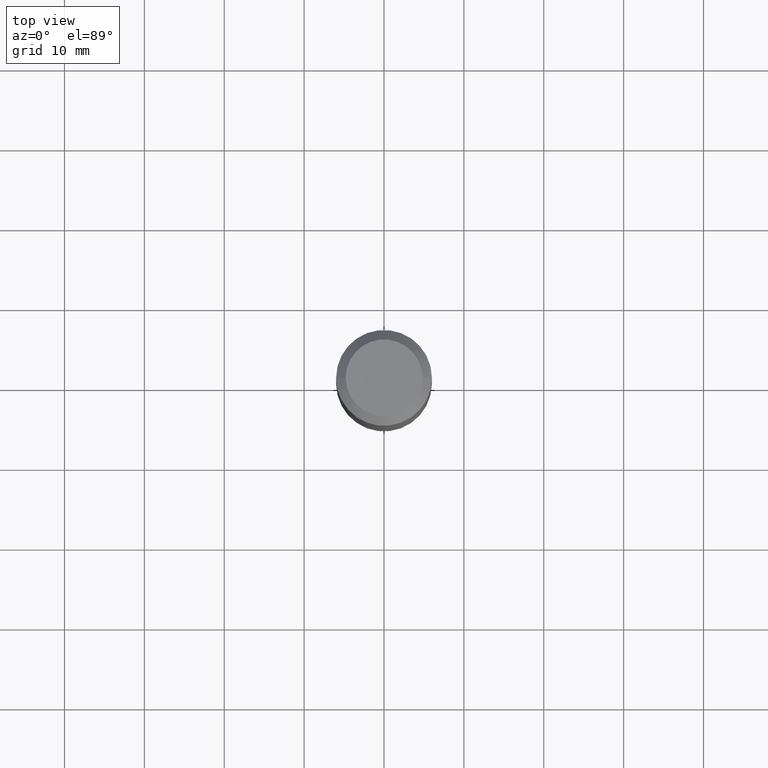
[diagram: clean part render]
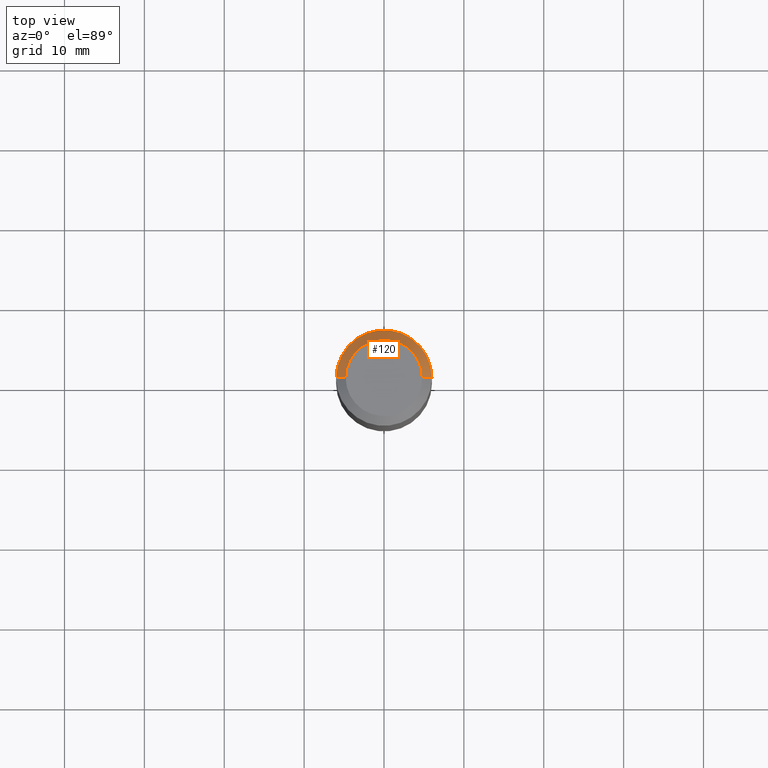
[diagram: same view with one face highlighted and labeled with its STEP entity id]
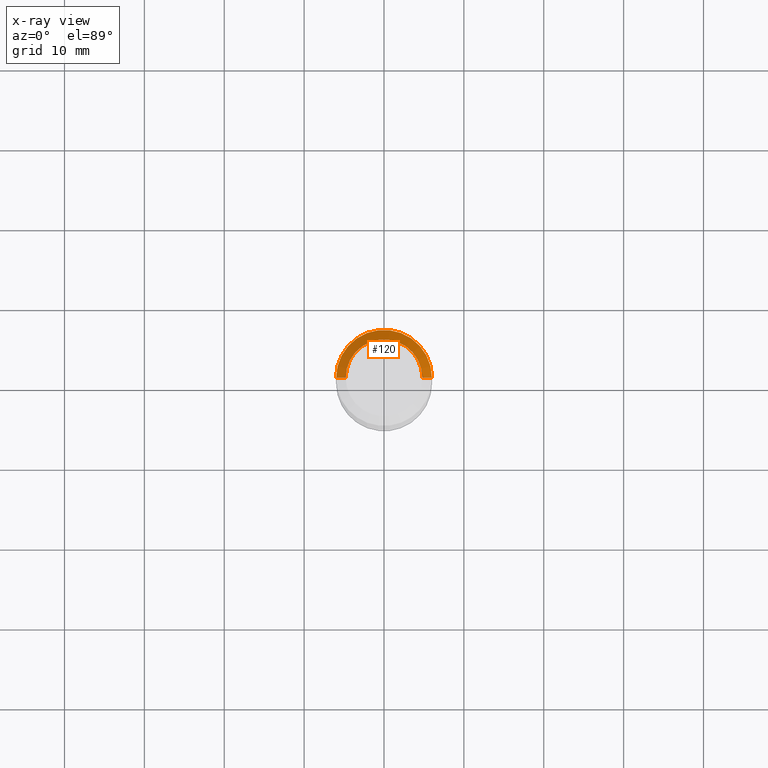
[diagram: x-ray of the same camera — body ghosted, the highlighted face saturated]
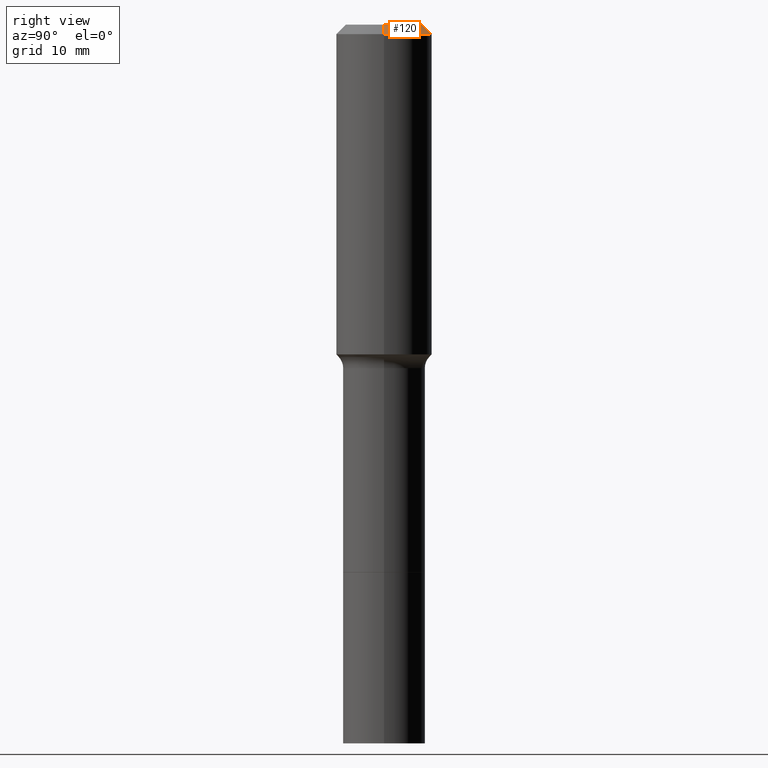
[diagram: same view with one face highlighted and labeled with its STEP entity id]
A machine part, top view. The second image highlights one B-rep face of the part: STEP entity #120.
The next image is the same camera in x-ray: the body ghosted, the highlighted face saturated — about 0% of this face is hidden behind the body in this view.
A second angle (right view) of the same face is appended — the face is thin or edge-on in the first view.
In plain terms, the highlighted conical surface has half-angle 45 deg.
Its self-contained STEP definition (entity closure, byte-faithful):
#28 = CIRCLE ( 'NONE', #326, 0.1889600000000000168 ) ;
#32 = VERTEX_POINT ( 'NONE', #131 ) ;
#43 = VECTOR ( 'NONE', #138, 39.37007874015748143 ) ;
#47 = EDGE_CURVE ( 'NONE', #76, #32, #306, .T. ) ;
#51 = VERTEX_POINT ( 'NONE', #58 ) ;
#58 = CARTESIAN_POINT ( 'NONE',  ( 0.2361999999999999933, -1.814313362916447440E-15, -0.04724000000000027483 ) ) ;
#64 = FACE_OUTER_BOUND ( 'NONE', #281, .T. ) ;
#76 = VERTEX_POINT ( 'NONE', #259 ) ;
#78 = DIRECTION ( 'NONE',  ( -2.445468806185136597E-29, 3.491481338843145583E-15, 1.000000000000000000 ) ) ;
#96 = CARTESIAN_POINT ( 'NONE',  ( -9.427742298522546243E-47, 1.346031739168365344E-32, 3.855188123715862256E-18 ) ) ;
#109 = CONICAL_SURFACE ( 'NONE', #185, 0.2361999999999999933, 0.7853981633974452814 ) ;
#119 = VERTEX_POINT ( 'NONE', #134 ) ;
#120 = ADVANCED_FACE ( 'NONE', ( #64 ), #109, .T. ) ;
#131 = CARTESIAN_POINT ( 'NONE',  ( -0.2361999999999999933, -1.242595281846650388E-15, -0.04724000000000027483 ) ) ;
#134 = CARTESIAN_POINT ( 'NONE',  ( 0.1889600000000000168, -1.540873453589747738E-15, 3.855188123725863225E-18 ) ) ;
#136 = LINE ( 'NONE', #383, #43 ) ;
#138 = DIRECTION ( 'NONE',  ( 0.7071067811865453523, -7.319954787623248157E-15, -0.7071067811865496822 ) ) ;
#166 = ORIENTED_EDGE ( 'NONE', *, *, #505, .T. ) ;
#185 = AXIS2_PLACEMENT_3D ( 'NONE', #308, #463, #262 ) ;
#191 = DIRECTION ( 'NONE',  ( 1.000000000000000000, -6.982962677686266711E-15, 0.000000000000000000 ) ) ;
#224 = DIRECTION ( 'NONE',  ( -2.445468806185136597E-29, 3.491481338843145583E-15, 1.000000000000000000 ) ) ;
#259 = CARTESIAN_POINT ( 'NONE',  ( -0.1889600000000000168, 1.401969416799070942E-15, 3.855188123706346622E-18 ) ) ;
#262 = DIRECTION ( 'NONE',  ( -1.000000000000000000, 6.982962677686266711E-15, 0.000000000000000000 ) ) ;
#272 = EDGE_CURVE ( 'NONE', #119, #76, #28, .T. ) ;
#281 = EDGE_LOOP ( 'NONE', ( #354, #482, #166, #370 ) ) ;
#306 = LINE ( 'NONE', #504, #401 ) ;
#308 = CARTESIAN_POINT ( 'NONE',  ( 1.155239464041865331E-30, -1.649375784469511612E-16, -0.04724000000000027483 ) ) ;
#309 = CIRCLE ( 'NONE', #437, 0.2361999999999999933 ) ;
#323 = EDGE_CURVE ( 'NONE', #119, #51, #136, .T. ) ;
#326 = AXIS2_PLACEMENT_3D ( 'NONE', #96, #224, #349 ) ;
#340 = DIRECTION ( 'NONE',  ( -0.7071067811865453523, 2.468850131082234184E-15, -0.7071067811865496822 ) ) ;
#349 = DIRECTION ( 'NONE',  ( 1.000000000000000000, -6.982962677686266711E-15, 4.876185090822587894E-29 ) ) ;
#354 = ORIENTED_EDGE ( 'NONE', *, *, #272, .F. ) ;
#370 = ORIENTED_EDGE ( 'NONE', *, *, #47, .F. ) ;
#383 = CARTESIAN_POINT ( 'NONE',  ( 0.2361999999999999933, -1.785387205520586782E-15, -0.04724000000000027483 ) ) ;
#401 = VECTOR ( 'NONE', #340, 39.37007874015748143 ) ;
#437 = AXIS2_PLACEMENT_3D ( 'NONE', #516, #78, #191 ) ;
#463 = DIRECTION ( 'NONE',  ( 2.445468806185136597E-29, -3.491481338843145583E-15, -1.000000000000000000 ) ) ;
#482 = ORIENTED_EDGE ( 'NONE', *, *, #323, .T. ) ;
#504 = CARTESIAN_POINT ( 'NONE',  ( -0.2361999999999999933, 1.484438206022545019E-15, -0.04724000000000027483 ) ) ;
#505 = EDGE_CURVE ( 'NONE', #51, #32, #309, .T. ) ;
#516 = CARTESIAN_POINT ( 'NONE',  ( 1.155239464041865331E-30, -1.649375784469511612E-16, -0.04724000000000027483 ) ) ;